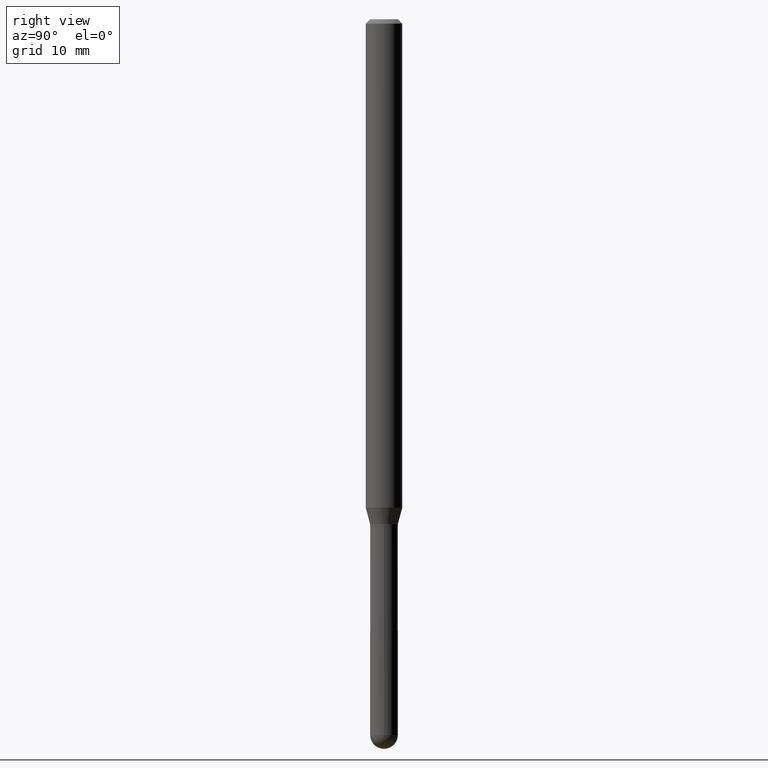
[diagram: clean part render]
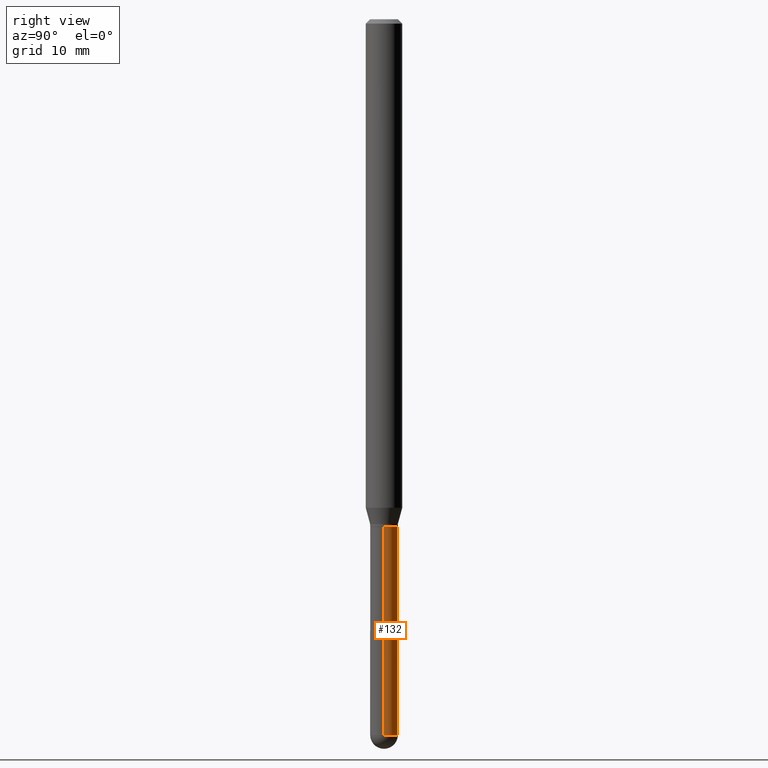
[diagram: same view with one face highlighted and labeled with its STEP entity id]
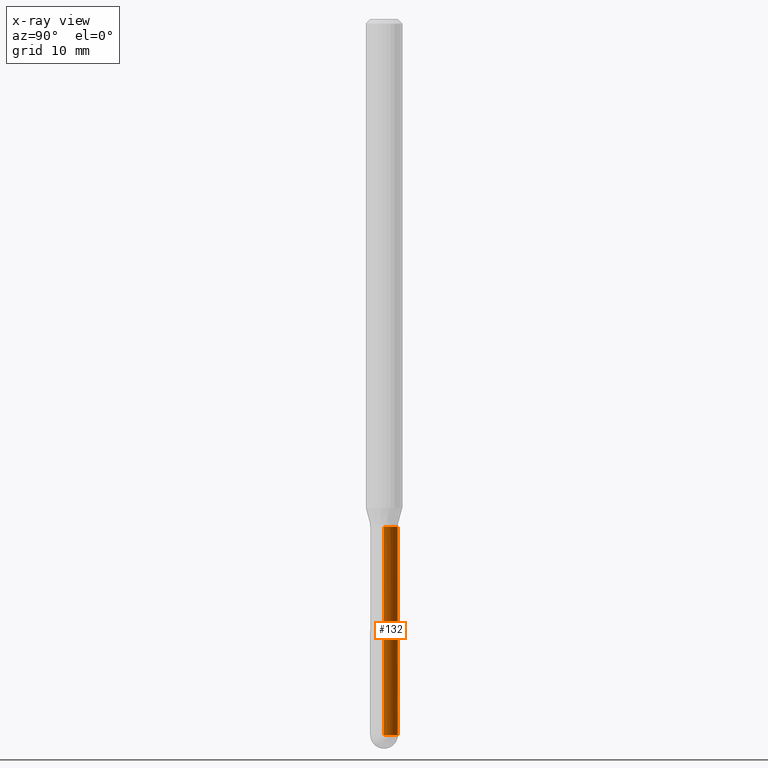
[diagram: x-ray of the same camera — body ghosted, the highlighted face saturated]
A machine part, right view. The second image highlights one B-rep face of the part: STEP entity #132.
The next image is the same camera in x-ray: the body ghosted, the highlighted face saturated — about 0% of this face is hidden behind the body in this view.
In plain terms, the highlighted cylindrical surface (edge-blend (fillet) strip) has radius 1.2065 mm, axis along (-0, 0, 1).
Its self-contained STEP definition (entity closure, byte-faithful):
#7 = CARTESIAN_POINT ( 'NONE',  ( 0.04750000000000000749, -3.316907271900977082E-16, 2.316183968503069432E-30 ) ) ;
#9 = EDGE_CURVE ( 'NONE', #505, #62, #481, .T. ) ;
#10 = CIRCLE ( 'NONE', #73, 0.04750000000000000749 ) ;
#32 = ORIENTED_EDGE ( 'NONE', *, *, #9, .T. ) ;
#36 = ORIENTED_EDGE ( 'NONE', *, *, #103, .F. ) ;
#39 = DIRECTION ( 'NONE',  ( 1.000000000000000000, -6.982962677686280910E-15, 0.000000000000000000 ) ) ;
#44 = DIRECTION ( 'NONE',  ( -2.445468806185136597E-29, 3.491481338843145583E-15, 1.000000000000000000 ) ) ;
#62 = VERTEX_POINT ( 'NONE', #65 ) ;
#63 = VECTOR ( 'NONE', #250, 39.37007874015748143 ) ;
#65 = CARTESIAN_POINT ( 'NONE',  ( -0.04749999999999999362, -6.981509957063897703E-15, -1.740000000000000213 ) ) ;
#68 = CARTESIAN_POINT ( 'NONE',  ( 0.000000000000000000, 0.000000000000000000, 0.000000000000000000 ) ) ;
#73 = AXIS2_PLACEMENT_3D ( 'NONE', #299, #492, #146 ) ;
#84 = AXIS2_PLACEMENT_3D ( 'NONE', #456, #241, #112 ) ;
#103 = EDGE_CURVE ( 'NONE', #303, #62, #223, .T. ) ;
#112 = DIRECTION ( 'NONE',  ( 1.000000000000000000, -6.982962677686261977E-15, 0.000000000000000000 ) ) ;
#116 = CARTESIAN_POINT ( 'NONE',  ( 0.04750000000000000749, -7.650708483740042707E-15, -2.452500000000000124 ) ) ;
#132 = ADVANCED_FACE ( 'NONE', ( #337 ), #295, .T. ) ;
#137 = CARTESIAN_POINT ( 'NONE',  ( 3.316907271901566262E-16, 0.04749999999999129918, -2.452500000000000568 ) ) ;
#146 = DIRECTION ( 'NONE',  ( 1.000000000000000000, -6.982962677686280910E-15, 0.000000000000000000 ) ) ;
#153 = VECTOR ( 'NONE', #486, 39.37007874015748143 ) ;
#174 = EDGE_CURVE ( 'NONE', #509, #318, #391, .T. ) ;
#179 = ORIENTED_EDGE ( 'NONE', *, *, #263, .F. ) ;
#209 = EDGE_LOOP ( 'NONE', ( #282, #32, #36, #179, #307 ) ) ;
#220 = LINE ( 'NONE', #7, #63 ) ;
#223 = CIRCLE ( 'NONE', #84, 0.04749999999999999362 ) ;
#241 = DIRECTION ( 'NONE',  ( -2.445468806185136597E-29, 3.491481338843145583E-15, 1.000000000000000000 ) ) ;
#250 = DIRECTION ( 'NONE',  ( -2.445468806185136877E-29, 3.491481338843145188E-15, 1.000000000000000000 ) ) ;
#263 = EDGE_CURVE ( 'NONE', #509, #303, #220, .T. ) ;
#282 = ORIENTED_EDGE ( 'NONE', *, *, #449, .T. ) ;
#295 = CYLINDRICAL_SURFACE ( 'NONE', #439, 0.04750000000000000749 ) ;
#299 = CARTESIAN_POINT ( 'NONE',  ( 5.997512247169047773E-29, -8.562857983512815004E-15, -2.452500000000000124 ) ) ;
#303 = VERTEX_POINT ( 'NONE', #317 ) ;
#307 = ORIENTED_EDGE ( 'NONE', *, *, #174, .T. ) ;
#317 = CARTESIAN_POINT ( 'NONE',  ( 0.04749999999999999362, -6.406868256777172111E-15, -1.740000000000000213 ) ) ;
#318 = VERTEX_POINT ( 'NONE', #137 ) ;
#337 = FACE_OUTER_BOUND ( 'NONE', #209, .T. ) ;
#341 = CARTESIAN_POINT ( 'NONE',  ( 5.997512247169047773E-29, -8.562857983512815004E-15, -2.452500000000000124 ) ) ;
#356 = DIRECTION ( 'NONE',  ( -2.445468806185136597E-29, 3.491481338843145583E-15, 1.000000000000000000 ) ) ;
#391 = CIRCLE ( 'NONE', #403, 0.04750000000000000749 ) ;
#403 = AXIS2_PLACEMENT_3D ( 'NONE', #341, #44, #39 ) ;
#405 = CARTESIAN_POINT ( 'NONE',  ( -0.04750000000000000749, 3.375077994860476415E-16, -2.336494167871080260E-30 ) ) ;
#439 = AXIS2_PLACEMENT_3D ( 'NONE', #68, #356, #498 ) ;
#449 = EDGE_CURVE ( 'NONE', #318, #505, #10, .T. ) ;
#456 = CARTESIAN_POINT ( 'NONE',  ( 4.255115722762138620E-29, -6.075177529587074600E-15, -1.740000000000000213 ) ) ;
#457 = CARTESIAN_POINT ( 'NONE',  ( -0.04750000000000000749, -6.981509957063897703E-15, -2.452500000000000124 ) ) ;
#481 = LINE ( 'NONE', #405, #153 ) ;
#486 = DIRECTION ( 'NONE',  ( -2.445468806185136877E-29, 3.491481338843145188E-15, 1.000000000000000000 ) ) ;
#492 = DIRECTION ( 'NONE',  ( -2.445468806185136597E-29, 3.491481338843145583E-15, 1.000000000000000000 ) ) ;
#498 = DIRECTION ( 'NONE',  ( 1.000000000000000000, -6.982962677686266711E-15, 4.876176775795934672E-29 ) ) ;
#505 = VERTEX_POINT ( 'NONE', #457 ) ;
#509 = VERTEX_POINT ( 'NONE', #116 ) ;